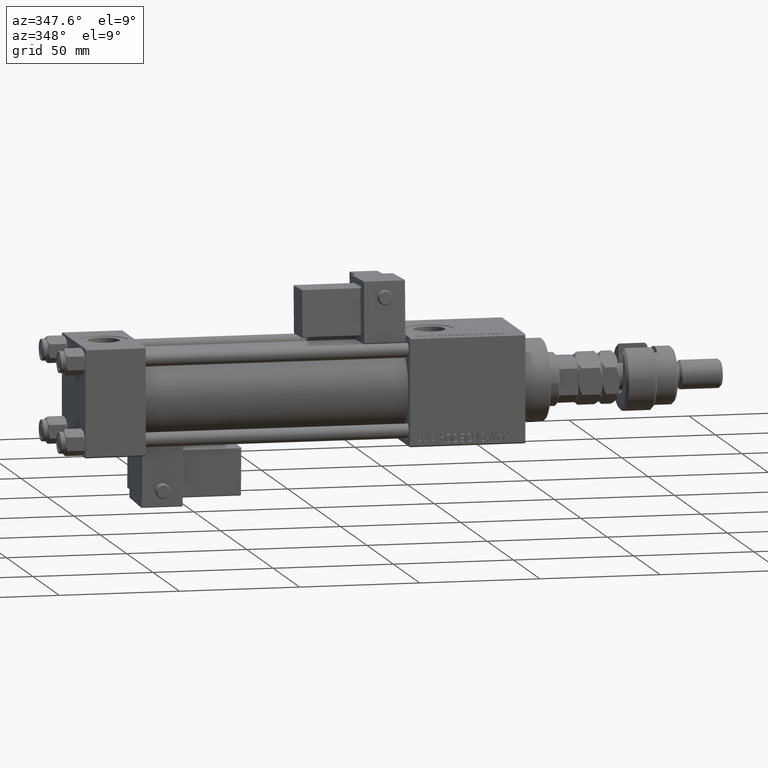
[diagram: clean part render]
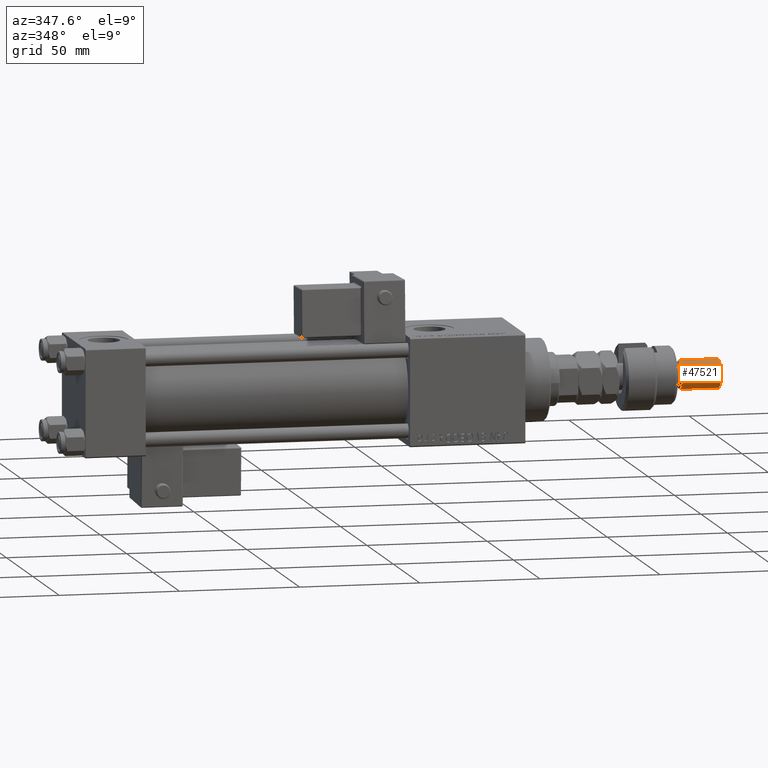
[diagram: same view with one face highlighted and labeled with its STEP entity id]
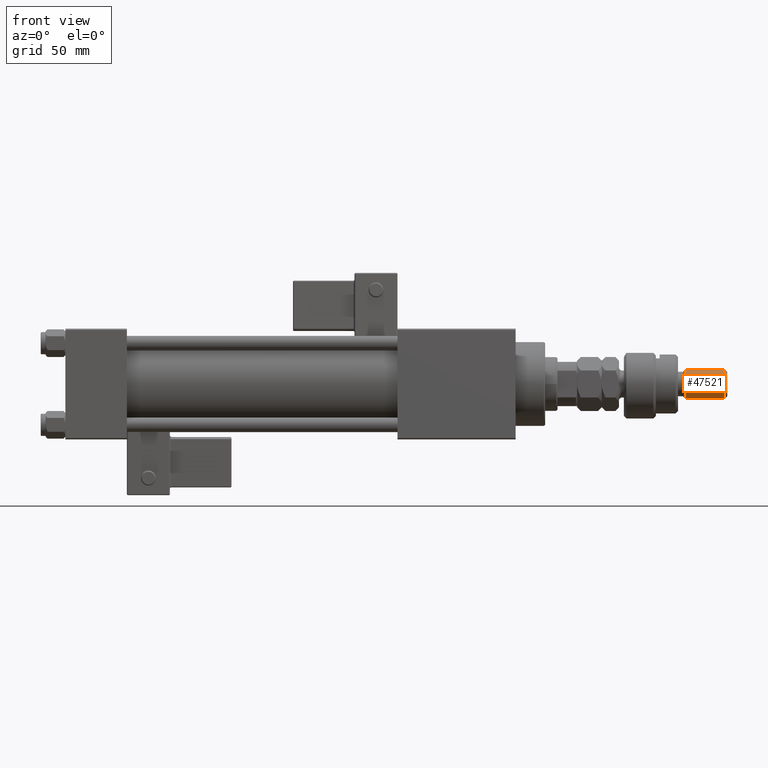
[diagram: same view with one face highlighted and labeled with its STEP entity id]
A machine part, auxiliary view. The second image highlights one B-rep face of the part: STEP entity #47521.
A second angle (front view) of the same face is appended — the face is thin or edge-on in the first view.
In plain terms, the highlighted cylindrical surface (edge-blend (fillet) strip) has radius 6 mm, axis along (-1, -0, 0).
Its self-contained STEP definition (entity closure, byte-faithful):
#2459 = ORIENTED_EDGE ( 'NONE', *, *, #45444, .T. ) ;
#2979 = DIRECTION ( 'NONE',  ( -0.000000000000000000, -0.000000000000000000, -1.000000000000000000 ) ) ;
#3886 = EDGE_CURVE ( 'NONE', #22107, #45471, #11237, .T. ) ;
#4225 = CARTESIAN_POINT ( 'NONE',  ( 6.000000000000000888, 7.347880794884120722E-16, 24.99999999999999645 ) ) ;
#7287 = CIRCLE ( 'NONE', #14482, 6.000000000000000888 ) ;
#7979 = DIRECTION ( 'NONE',  ( -0.000000000000000000, -0.000000000000000000, -1.000000000000000000 ) ) ;
#8531 = CARTESIAN_POINT ( 'NONE',  ( 6.000000000000000888, 7.347880794884120722E-16, 40.99999999999997868 ) ) ;
#8794 = LINE ( 'NONE', #38790, #18790 ) ;
#10778 = CARTESIAN_POINT ( 'NONE',  ( -6.000000000000000888, 0.000000000000000000, 40.99999999999997868 ) ) ;
#10994 = CARTESIAN_POINT ( 'NONE',  ( 0.000000000000000000, 0.000000000000000000, 24.99999999999999645 ) ) ;
#11237 = LINE ( 'NONE', #25168, #33051 ) ;
#13582 = CARTESIAN_POINT ( 'NONE',  ( -6.000000000000000888, 0.000000000000000000, 24.99999999999999645 ) ) ;
#14482 = AXIS2_PLACEMENT_3D ( 'NONE', #27768, #44869, #42519 ) ;
#18156 = VERTEX_POINT ( 'NONE', #10778 ) ;
#18623 = ORIENTED_EDGE ( 'NONE', *, *, #3886, .F. ) ;
#18790 = VECTOR ( 'NONE', #7979, 1000.000000000000000 ) ;
#20075 = DIRECTION ( 'NONE',  ( -1.000000000000000000, 0.000000000000000000, 0.000000000000000000 ) ) ;
#22107 = VERTEX_POINT ( 'NONE', #8531 ) ;
#22147 = VERTEX_POINT ( 'NONE', #13582 ) ;
#23125 = ORIENTED_EDGE ( 'NONE', *, *, #25092, .T. ) ;
#24271 = FACE_OUTER_BOUND ( 'NONE', #38337, .T. ) ;
#25092 = EDGE_CURVE ( 'NONE', #18156, #22147, #8794, .T. ) ;
#25168 = CARTESIAN_POINT ( 'NONE',  ( 6.000000000000000888, 7.347880794884120722E-16, 41.99999999999999289 ) ) ;
#26728 = CIRCLE ( 'NONE', #39265, 6.000000000000000888 ) ;
#27768 = CARTESIAN_POINT ( 'NONE',  ( 0.000000000000000000, 0.000000000000000000, 40.99999999999997868 ) ) ;
#30778 = EDGE_CURVE ( 'NONE', #22107, #18156, #7287, .T. ) ;
#33051 = VECTOR ( 'NONE', #55429, 1000.000000000000000 ) ;
#36234 = DIRECTION ( 'NONE',  ( -0.000000000000000000, -0.000000000000000000, 1.000000000000000000 ) ) ;
#38337 = EDGE_LOOP ( 'NONE', ( #18623, #45656, #23125, #2459 ) ) ;
#38790 = CARTESIAN_POINT ( 'NONE',  ( -6.000000000000000888, 0.000000000000000000, 41.99999999999999289 ) ) ;
#39265 = AXIS2_PLACEMENT_3D ( 'NONE', #10994, #36234, #45458 ) ;
#40541 = CARTESIAN_POINT ( 'NONE',  ( 0.000000000000000000, 0.000000000000000000, 41.99999999999999289 ) ) ;
#41167 = AXIS2_PLACEMENT_3D ( 'NONE', #40541, #2979, #20075 ) ;
#42519 = DIRECTION ( 'NONE',  ( 1.000000000000000000, 0.000000000000000000, 0.000000000000000000 ) ) ;
#44869 = DIRECTION ( 'NONE',  ( 0.000000000000000000, 0.000000000000000000, -1.000000000000000000 ) ) ;
#45444 = EDGE_CURVE ( 'NONE', #22147, #45471, #26728, .T. ) ;
#45458 = DIRECTION ( 'NONE',  ( 1.000000000000000000, 0.000000000000000000, 0.000000000000000000 ) ) ;
#45471 = VERTEX_POINT ( 'NONE', #4225 ) ;
#45656 = ORIENTED_EDGE ( 'NONE', *, *, #30778, .T. ) ;
#45850 = CYLINDRICAL_SURFACE ( 'NONE', #41167, 6.000000000000000888 ) ;
#47521 = ADVANCED_FACE ( 'NONE', ( #24271 ), #45850, .T. ) ;
#55429 = DIRECTION ( 'NONE',  ( -0.000000000000000000, -0.000000000000000000, -1.000000000000000000 ) ) ;